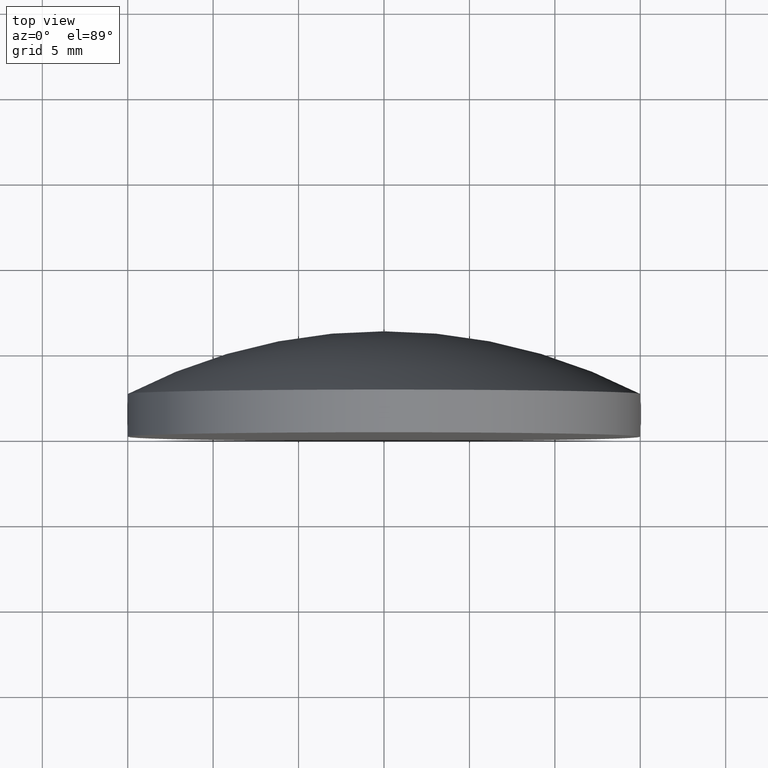
[diagram: clean part render]
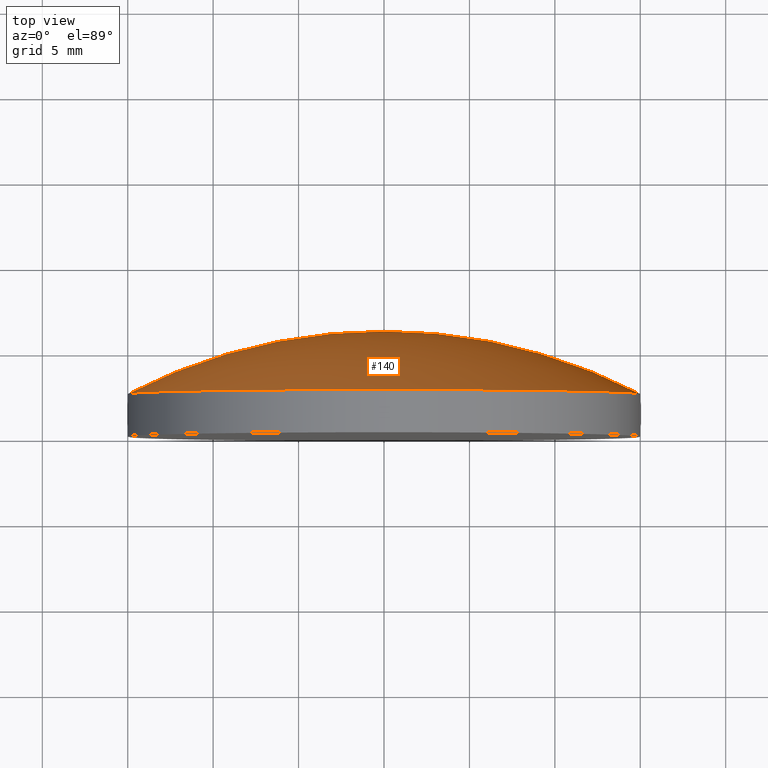
[diagram: same view with one face highlighted and labeled with its STEP entity id]
A machine part, top view. The second image highlights one B-rep face of the part: STEP entity #140.
In plain terms, the highlighted toroidal blend (fillet) surface has major radius 0.0027 mm and minor (blend) radius 32.5 mm.
Its self-contained STEP definition (entity closure, byte-faithful):
#5 = AXIS2_PLACEMENT_3D ( 'NONE', #77, #144, #67 ) ;
#12 = CIRCLE ( 'NONE', #159, 32.50000000000000711 ) ;
#27 = ORIENTED_EDGE ( 'NONE', *, *, #145, .T. ) ;
#31 = DIRECTION ( 'NONE',  ( -1.000000000000000000, 2.242870150788507762E-17, 0.000000000000000000 ) ) ;
#40 = CIRCLE ( 'NONE', #92, 15.00000000000000000 ) ;
#44 = CIRCLE ( 'NONE', #5, 32.50000000000000711 ) ;
#46 = EDGE_CURVE ( 'NONE', #72, #125, #40, .T. ) ;
#47 = DIRECTION ( 'NONE',  ( -0.000000000000000000, 0.000000000000000000, -1.000000000000000000 ) ) ;
#49 = DIRECTION ( 'NONE',  ( 2.242870150788507762E-17, 1.000000000000000000, -0.000000000000000000 ) ) ;
#57 = ORIENTED_EDGE ( 'NONE', *, *, #132, .F. ) ;
#65 = TOROIDAL_SURFACE ( 'NONE', #80, -0.002703305825795567375, 32.50000000000000711 ) ;
#67 = DIRECTION ( 'NONE',  ( 1.000000000000000000, 0.000000000000000000, 1.224646799147353454E-16 ) ) ;
#72 = VERTEX_POINT ( 'NONE', #165 ) ;
#75 = EDGE_LOOP ( 'NONE', ( #126, #27, #57 ) ) ;
#77 = CARTESIAN_POINT ( 'NONE',  ( -0.002703305825796158048, -26.32999988757135412, -3.310594826676934179E-19 ) ) ;
#80 = AXIS2_PLACEMENT_3D ( 'NONE', #108, #49, #31 ) ;
#81 = CARTESIAN_POINT ( 'NONE',  ( 15.00000000000000178, 2.499999999999997780, 1.836970198721029983E-15 ) ) ;
#92 = AXIS2_PLACEMENT_3D ( 'NONE', #157, #167, #103 ) ;
#103 = DIRECTION ( 'NONE',  ( -1.000000000000000000, 2.891205793294678696E-17, 0.000000000000000000 ) ) ;
#108 = CARTESIAN_POINT ( 'NONE',  ( -5.903819642362473363E-16, -26.32999988757135412, 0.000000000000000000 ) ) ;
#125 = VERTEX_POINT ( 'NONE', #81 ) ;
#126 = ORIENTED_EDGE ( 'NONE', *, *, #46, .T. ) ;
#132 = EDGE_CURVE ( 'NONE', #72, #143, #12, .T. ) ;
#140 = ADVANCED_FACE ( 'NONE', ( #179 ), #65, .T. ) ;
#143 = VERTEX_POINT ( 'NONE', #177 ) ;
#144 = DIRECTION ( 'NONE',  ( -1.224646799147353207E-16, 2.746723751066287444E-33, 1.000000000000000000 ) ) ;
#145 = EDGE_CURVE ( 'NONE', #125, #143, #44, .T. ) ;
#157 = CARTESIAN_POINT ( 'NONE',  ( 5.607175376971264475E-17, 2.499999999999997780, 0.000000000000000000 ) ) ;
#159 = AXIS2_PLACEMENT_3D ( 'NONE', #160, #47, #172 ) ;
#160 = CARTESIAN_POINT ( 'NONE',  ( 0.002703305825794977135, -26.32999988757135412, 0.000000000000000000 ) ) ;
#165 = CARTESIAN_POINT ( 'NONE',  ( -15.00000000000000355, 2.499999999999998668, 0.000000000000000000 ) ) ;
#167 = DIRECTION ( 'NONE',  ( 2.242870150788507762E-17, 1.000000000000000000, -0.000000000000000000 ) ) ;
#172 = DIRECTION ( 'NONE',  ( -1.000000000000000000, 0.000000000000000000, 0.000000000000000000 ) ) ;
#177 = CARTESIAN_POINT ( 'NONE',  ( 1.383850883036509511E-16, 6.169999999999999929, 0.000000000000000000 ) ) ;
#179 = FACE_OUTER_BOUND ( 'NONE', #75, .T. ) ;